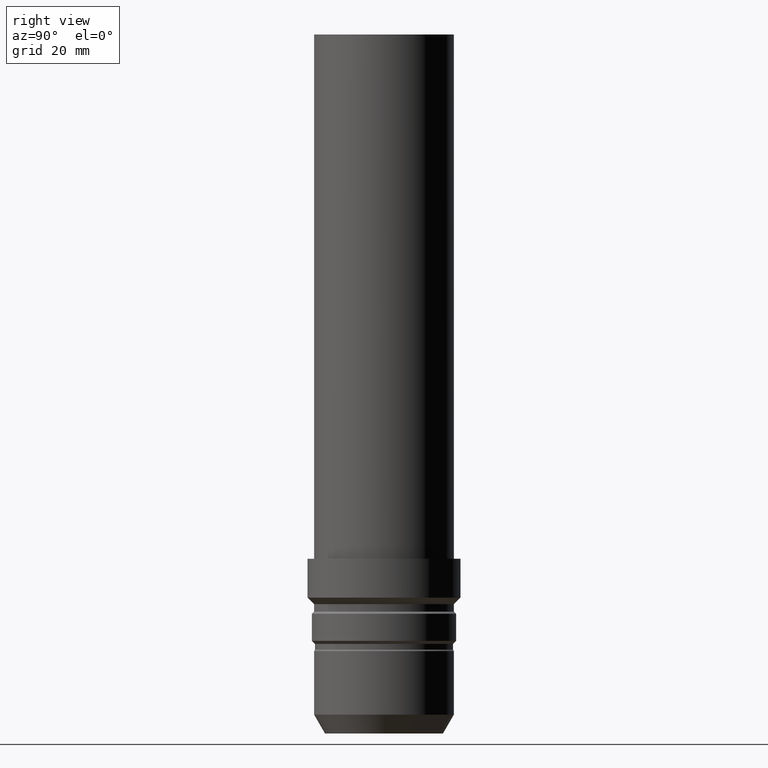
[diagram: clean part render]
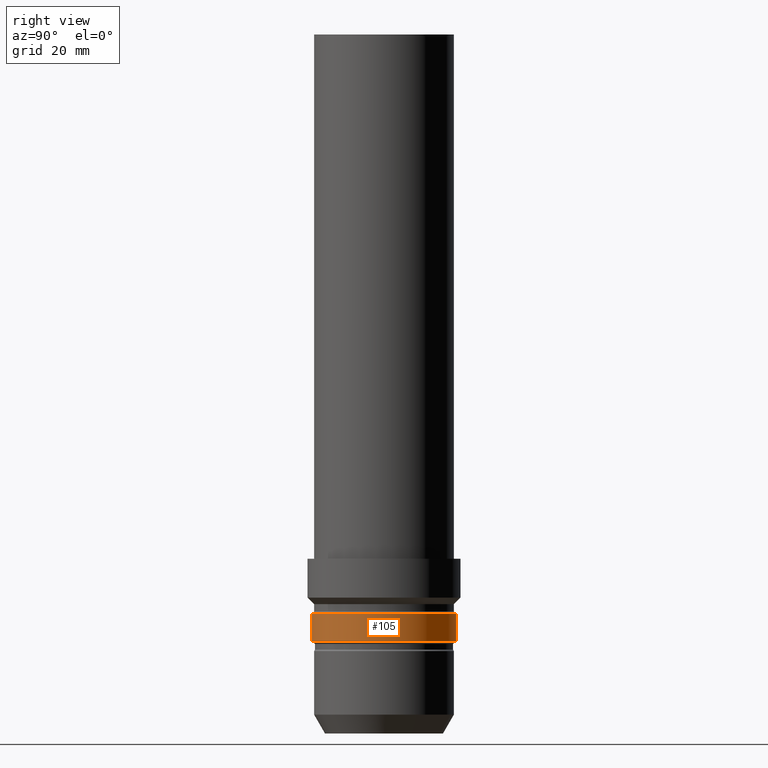
[diagram: same view with one face highlighted and labeled with its STEP entity id]
A machine part, right view. The second image highlights one B-rep face of the part: STEP entity #105.
In plain terms, the highlighted cylindrical surface (bore or boss wall) has radius 16.5 mm, axis along (0, -0, -1).
Its self-contained STEP definition (entity closure, byte-faithful):
#89=EDGE_CURVE('Unnamed[1]',#196,#196,#197,.T.);
#102=EDGE_CURVE('Unnamed[1]',#217,#217,#218,.T.);
#105=ADVANCED_FACE('Unnamed[1]',(#221,#222),#223,.T.);
#196=VERTEX_POINT('',#326);
#197=CIRCLE('',#327,16.5000000000002);
#217=VERTEX_POINT('',#352);
#218=CIRCLE('',#353,16.5000000000001);
#221=FACE_BOUND('',#357,.T.);
#222=FACE_BOUND('',#358,.T.);
#223=CYLINDRICAL_SURFACE('',#359,16.5000000000001);
#326=CARTESIAN_POINT('',(-1.67776611483181E-015,16.5000000000002,27.399999999999));
#327=AXIS2_PLACEMENT_3D('',#455,#456,#457);
#352=CARTESIAN_POINT('',(-1.29812560709621E-015,16.5000000000001,21.2000000000002));
#353=AXIS2_PLACEMENT_3D('',#479,#480,#481);
#357=EDGE_LOOP('',(#483));
#358=EDGE_LOOP('',(#484));
#359=AXIS2_PLACEMENT_3D('',#485,#486,#487);
#455=CARTESIAN_POINT('',(-1.67776611483181E-015,3.75076776468782E-014,27.399999999999));
#456=DIRECTION('',(6.12323399573677E-017,-1.36889334477654E-015,-1.0));
#457=DIRECTION('',(7.89933899219759E-032,1.0,-1.36889334477654E-015));
#479=CARTESIAN_POINT('',(-1.29812560709621E-015,2.90205389092649E-014,21.2000000000003));
#480=DIRECTION('',(6.12323399573677E-017,-1.36889334477655E-015,-1.0));
#481=DIRECTION('',(7.89933899219547E-032,1.0,-1.36889334477655E-015));
#483=ORIENTED_EDGE('',*,*,#102,.F.);
#484=ORIENTED_EDGE('',*,*,#89,.T.);
#485=CARTESIAN_POINT('',(-1.48794586096401E-015,3.32641082780716E-014,24.2999999999996));
#486=DIRECTION('',(6.12323399573677E-017,-1.36889334477654E-015,-1.0));
#487=DIRECTION('',(7.89933899219762E-032,1.0,-1.36889334477654E-015));